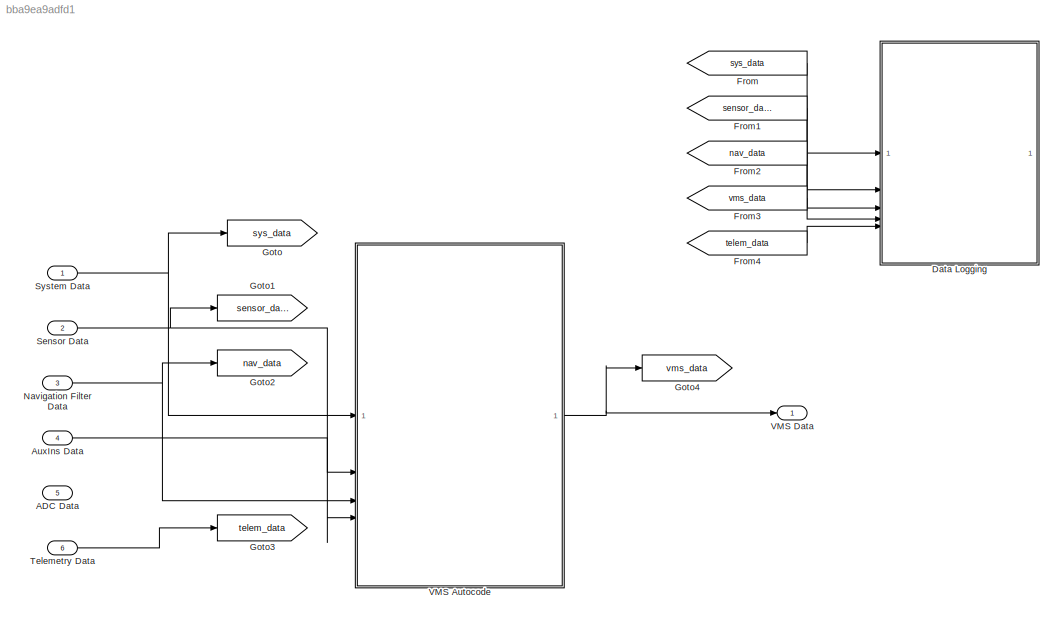
MODEL slx_bba9ea9adfd1
KIND model
CONFIG AbsTol = auto
CONFIG EnableMultiTasking = off
CONFIG FixedStep = 1/100
CONFIG MaxStep = auto
CONFIG MinStep = auto
CONFIG RelTol = 1e-3
CONFIG SampleTimeConstraint = Unconstrained
CONFIG SolverName = FixedStepAuto
CONFIG StartTime = 0.0
CONFIG StopTime = 10.0
BLOCK [Inport] ADC Data
  BusOutputAsStruct = on
  OutDataTypeStr = Bus: AdcData
  Port = 5
  SampleTime = framePeriod_s
BLOCK [Inport] AuxIns Data
  BusOutputAsStruct = on
  OutDataTypeStr = Bus: AuxInsData
  Port = 4
  SampleTime = framePeriod_s
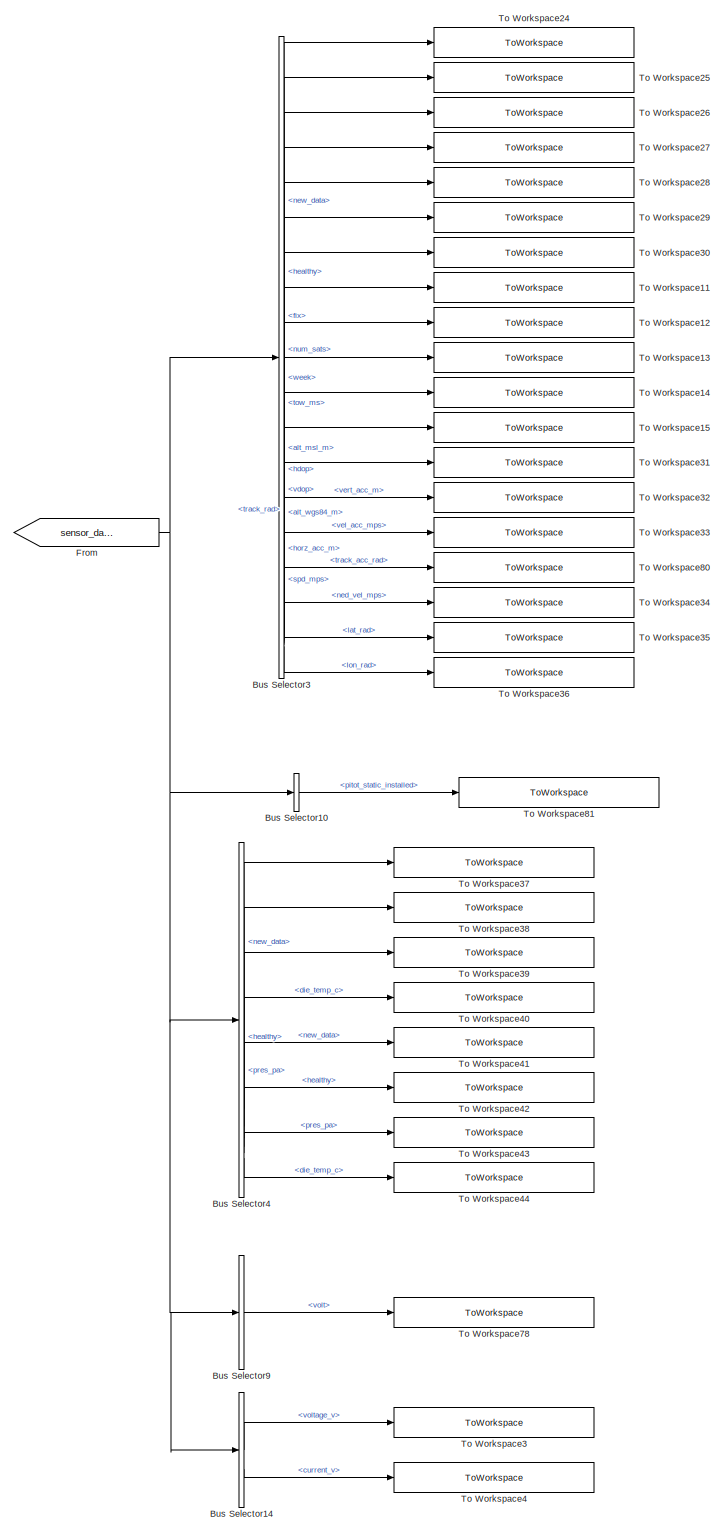
[diagram: Data Logging - part 1/5, center side, full height]
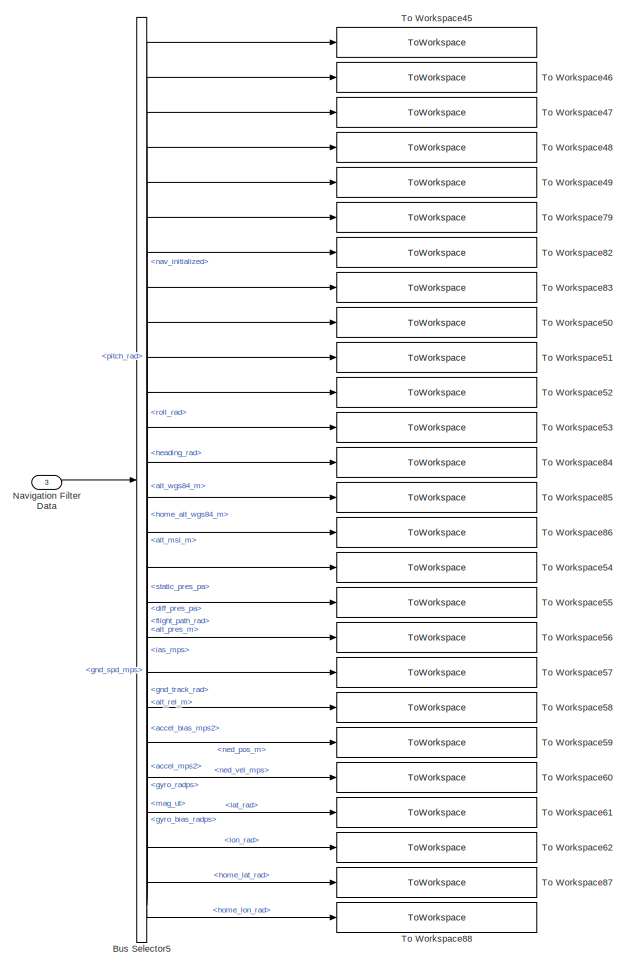
[diagram: Data Logging - part 2/5, top center region]
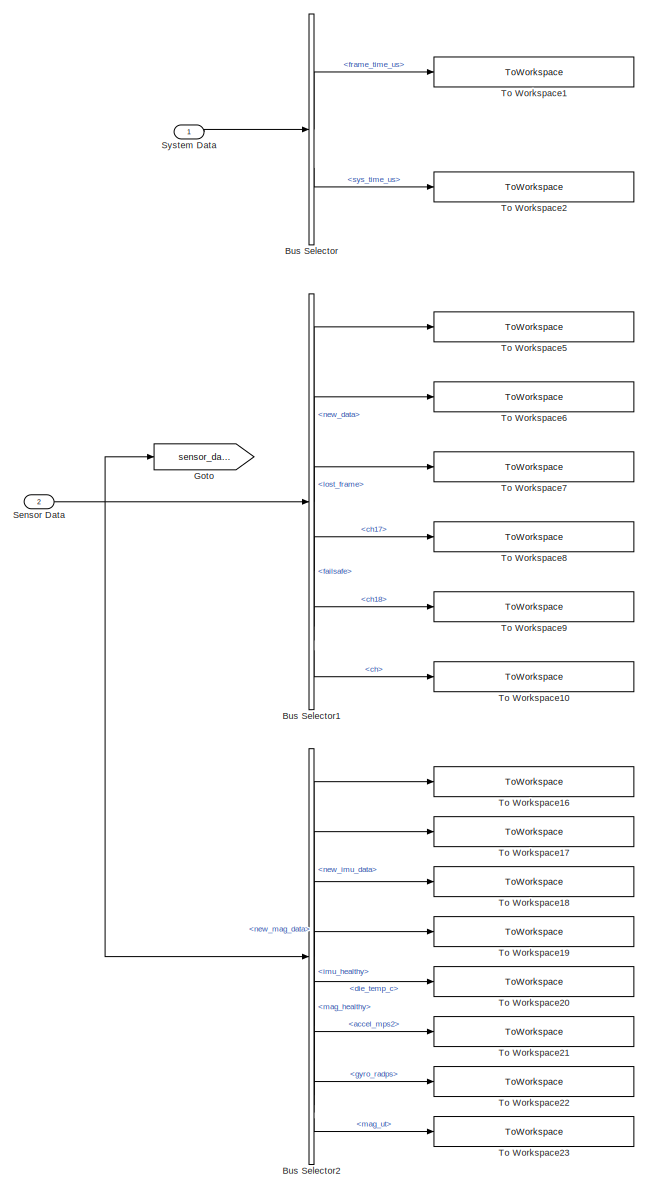
[diagram: Data Logging - part 3/5, middle left region]
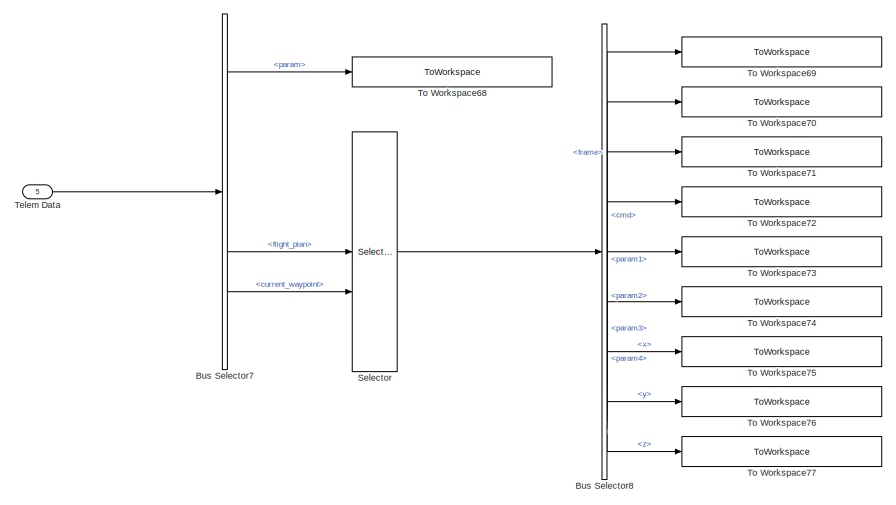
[diagram: Data Logging - part 4/5, middle right region]
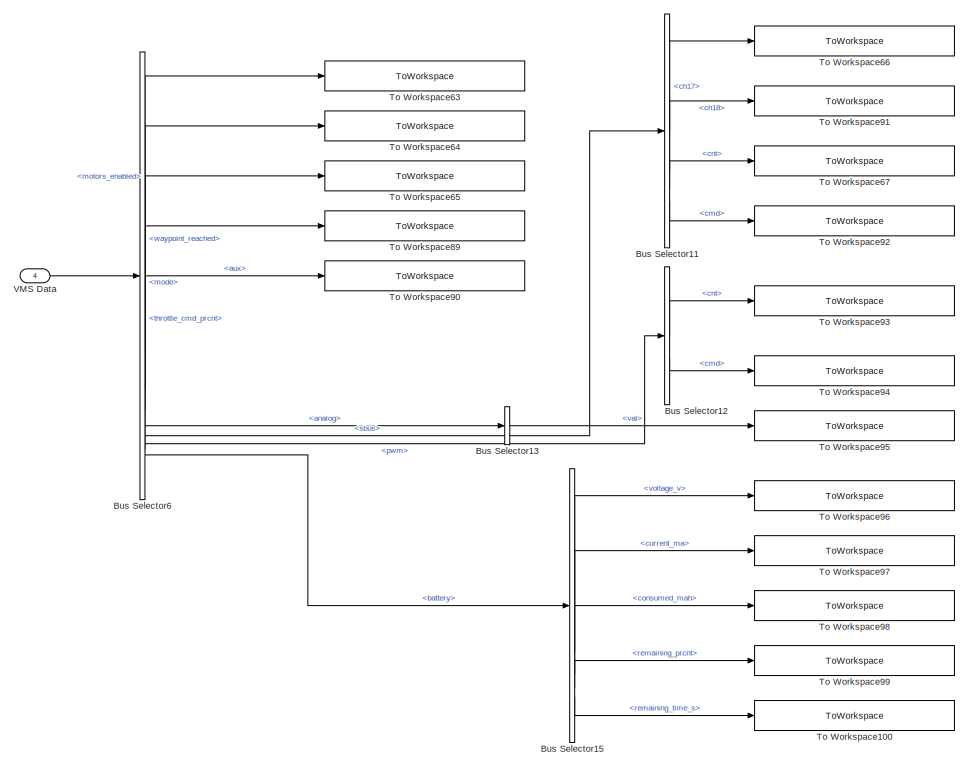
[diagram: Data Logging - part 5/5, bottom center region]
BLOCK [SubSystem] Data Logging
BLOCK [BusSelector] Data Logging/Bus Selector
  OutputSignals = frame_time_us,sys_time_us
BLOCK [BusSelector] Data Logging/Bus Selector1
  OutputSignals = inceptor.new_data,inceptor.lost_frame,inceptor.failsafe,inceptor.ch17,inceptor.ch18,inceptor.ch
BLOCK [BusSelector] Data Logging/Bus Selector10
  OutputSignals = pitot_static_installed
BLOCK [BusSelector] Data Logging/Bus Selector11
  OutputSignals = ch17,ch18,cnt,cmd
BLOCK [BusSelector] Data Logging/Bus Selector12
  OutputSignals = cnt,cmd
BLOCK [BusSelector] Data Logging/Bus Selector13
  OutputSignals = val
BLOCK [BusSelector] Data Logging/Bus Selector14
  OutputSignals = power_module.voltage_v,power_module.current_v
BLOCK [BusSelector] Data Logging/Bus Selector15
  OutputSignals = voltage_v,current_ma,consumed_mah,remaining_prcnt,remaining_time_s
BLOCK [BusSelector] Data Logging/Bus Selector2
  OutputSignals = imu.new_imu_data,imu.new_mag_data,imu.imu_healthy,imu.mag_healthy,imu.die_temp_c,imu.accel_mps2,imu.gyro_radps,imu.mag_ut
BLOCK [BusSelector] Data Logging/Bus Selector3
  OutputSignals = gnss.new_data,gnss.healthy,gnss.fix,gnss.num_sats,gnss.week,gnss.tow_ms,gnss.alt_wgs84_m,gnss.alt_msl_m,gnss.hdop,gnss.vdop,gnss.track_rad,gnss.spd_mps,gnss.horz_acc_m,gnss.vert_acc_m,gnss.vel_acc_mps,gnss.track_acc_rad,gnss.ned_vel_mps,gnss.lat_rad,gnss.lon_rad
BLOCK [BusSelector] Data Logging/Bus Selector4
  OutputSignals = static_pres.new_data,static_pres.healthy,static_pres.pres_pa,static_pres.die_temp_c,diff_pres.new_data,diff_pres.healthy,diff_pres.pres_pa,diff_pres.die_temp_c
BLOCK [BusSelector] Data Logging/Bus Selector5
  OutputSignals = nav_initialized,pitch_rad,roll_rad,heading_rad,alt_wgs84_m,home_alt_wgs84_m,alt_msl_m,alt_rel_m,static_pres_pa,diff_pres_pa,alt_pres_m,ias_mps,gnd_spd_mps,gnd_track_rad,flight_path_rad,accel_bias_mps2,gyro_bias_radps,accel_mps2,gyro_radps,mag_ut,ned_pos_m,ned_vel_mps,lat_rad,lon_rad,home_lat_rad,home_lon_rad
BLOCK [BusSelector] Data Logging/Bus Selector6
  OutputSignals = motors_enabled,waypoint_reached,mode,throttle_cmd_prcnt,aux,sbus,pwm,analog,battery
BLOCK [BusSelector] Data Logging/Bus Selector7
  OutputSignals = param,flight_plan,current_waypoint
BLOCK [BusSelector] Data Logging/Bus Selector8
  OutputSignals = frame,cmd,param1,param2,param3,param4,x,y,z
BLOCK [BusSelector] Data Logging/Bus Selector9
  OutputSignals = adc.volt
BLOCK [From] Data Logging/From
  GotoTag = sensor_data
BLOCK [Goto] Data Logging/Goto
  GotoTag = sensor_data
BLOCK [Inport] Data Logging/Navigation Filter Data
  Port = 3
BLOCK [Selector] Data Logging/Selector
  IndexMode = Zero-based
  IndexOptions = Index vector (port)
  Indices = [1 3]
  InputPortWidth = 500
  OutputSizes = 1
BLOCK [Inport] Data Logging/Sensor Data
  Port = 2
BLOCK [Inport] Data Logging/System Data
BLOCK [Inport] Data Logging/Telem Data
  Port = 5
BLOCK [ToWorkspace] Data Logging/To Workspace1
  FixptAsFi = on
  MaxDataPoints = inf
  SampleTime = -1
  VariableName = sys_frame_time_us
BLOCK [ToWorkspace] Data Logging/To Workspace10
  FixptAsFi = on
  MaxDataPoints = inf
  SampleTime = -1
  VariableName = incept_ch
BLOCK [ToWorkspace] Data Logging/To Workspace100
  FixptAsFi = on
  MaxDataPoints = inf
  SampleTime = -1
  VariableName = vms_batt_remaining_time_s
BLOCK [ToWorkspace] Data Logging/To Workspace11
  FixptAsFi = on
  MaxDataPoints = inf
  SampleTime = -1
  VariableName = gnss_alt_msl_m
BLOCK [ToWorkspace] Data Logging/To Workspace12
  FixptAsFi = on
  MaxDataPoints = inf
  SampleTime = -1
  VariableName = gnss_hdop
BLOCK [ToWorkspace] Data Logging/To Workspace13
  FixptAsFi = on
  MaxDataPoints = inf
  SampleTime = -1
  VariableName = gnss_vdop
BLOCK [ToWorkspace] Data Logging/To Workspace14
  FixptAsFi = on
  MaxDataPoints = inf
  SampleTime = -1
  VariableName = gnss_track_rad
BLOCK [ToWorkspace] Data Logging/To Workspace15
  FixptAsFi = on
  MaxDataPoints = inf
  SampleTime = -1
  VariableName = gnss_spd_mps
BLOCK [ToWorkspace] Data Logging/To Workspace16
  FixptAsFi = on
  MaxDataPoints = inf
  SampleTime = -1
  VariableName = imu_new_data
BLOCK [ToWorkspace] Data Logging/To Workspace17
  FixptAsFi = on
  MaxDataPoints = inf
  SampleTime = -1
  VariableName = imu_new_mag_data
BLOCK [ToWorkspace] Data Logging/To Workspace18
  FixptAsFi = on
  MaxDataPoints = inf
  SampleTime = -1
  VariableName = imu_healthy
BLOCK [ToWorkspace] Data Logging/To Workspace19
  FixptAsFi = on
  MaxDataPoints = inf
  SampleTime = -1
  VariableName = imu_mag_healthy
BLOCK [ToWorkspace] Data Logging/To Workspace2
  FixptAsFi = on
  MaxDataPoints = inf
  SampleTime = -1
  VariableName = sys_time_us
BLOCK [ToWorkspace] Data Logging/To Workspace20
  FixptAsFi = on
  MaxDataPoints = inf
  SampleTime = -1
  VariableName = imu_die_temp_c
BLOCK [ToWorkspace] Data Logging/To Workspace21
  FixptAsFi = on
  MaxDataPoints = inf
  SampleTime = -1
  VariableName = imu_accel_mps2
BLOCK [ToWorkspace] Data Logging/To Workspace22
  FixptAsFi = on
  MaxDataPoints = inf
  SampleTime = -1
  VariableName = imu_gyro_radps
BLOCK [ToWorkspace] Data Logging/To Workspace23
  FixptAsFi = on
  MaxDataPoints = inf
  SampleTime = -1
  VariableName = imu_mag_ut
BLOCK [ToWorkspace] Data Logging/To Workspace24
  FixptAsFi = on
  MaxDataPoints = inf
  SampleTime = -1
  VariableName = gnss_new_data
BLOCK [ToWorkspace] Data Logging/To Workspace25
  FixptAsFi = on
  MaxDataPoints = inf
  SampleTime = -1
  VariableName = gnss_healthy
BLOCK [ToWorkspace] Data Logging/To Workspace26
  FixptAsFi = on
  MaxDataPoints = inf
  SampleTime = -1
  VariableName = gnss_fix
BLOCK [ToWorkspace] Data Logging/To Workspace27
  FixptAsFi = on
  MaxDataPoints = inf
  SampleTime = -1
  VariableName = gnss_num_sats
BLOCK [ToWorkspace] Data Logging/To Workspace28
  FixptAsFi = on
  MaxDataPoints = inf
  SampleTime = -1
  VariableName = gnss_week
BLOCK [ToWorkspace] Data Logging/To Workspace29
  FixptAsFi = on
  MaxDataPoints = inf
  SampleTime = -1
  VariableName = gnss_tow_ms
BLOCK [ToWorkspace] Data Logging/To Workspace3
  FixptAsFi = on
  MaxDataPoints = inf
  SampleTime = -1
  VariableName = pwr_mod_volt_v
BLOCK [ToWorkspace] Data Logging/To Workspace30
  FixptAsFi = on
  MaxDataPoints = inf
  SampleTime = -1
  VariableName = gnss_alt_wgs84_m
BLOCK [ToWorkspace] Data Logging/To Workspace31
  FixptAsFi = on
  MaxDataPoints = inf
  SampleTime = -1
  VariableName = gnss_horz_acc_m
BLOCK [ToWorkspace] Data Logging/To Workspace32
  FixptAsFi = on
  MaxDataPoints = inf
  SampleTime = -1
  VariableName = gnss_vert_acc_m
BLOCK [ToWorkspace] Data Logging/To Workspace33
  FixptAsFi = on
  MaxDataPoints = inf
  SampleTime = -1
  VariableName = gnss_vel_acc_mps
BLOCK [ToWorkspace] Data Logging/To Workspace34
  FixptAsFi = on
  MaxDataPoints = inf
  SampleTime = -1
  VariableName = gnss_ned_vel_mps
BLOCK [ToWorkspace] Data Logging/To Workspace35
  FixptAsFi = on
  MaxDataPoints = inf
  SampleTime = -1
  VariableName = gnss_lat_rad
BLOCK [ToWorkspace] Data Logging/To Workspace36
  FixptAsFi = on
  MaxDataPoints = inf
  SampleTime = -1
  VariableName = gnss_lon_rad
BLOCK [ToWorkspace] Data Logging/To Workspace37
  FixptAsFi = on
  MaxDataPoints = inf
  SampleTime = -1
  VariableName = pres_static_new_data
BLOCK [ToWorkspace] Data Logging/To Workspace38
  FixptAsFi = on
  MaxDataPoints = inf
  SampleTime = -1
  VariableName = pres_static_healthy
BLOCK [ToWorkspace] Data Logging/To Workspace39
  FixptAsFi = on
  MaxDataPoints = inf
  SampleTime = -1
  VariableName = pres_static_pres_pa
BLOCK [ToWorkspace] Data Logging/To Workspace4
  FixptAsFi = on
  MaxDataPoints = inf
  SampleTime = -1
  VariableName = pwr_mod_curr_v
BLOCK [ToWorkspace] Data Logging/To Workspace40
  FixptAsFi = on
  MaxDataPoints = inf
  SampleTime = -1
  VariableName = pres_static_die_temp_c
BLOCK [ToWorkspace] Data Logging/To Workspace41
  FixptAsFi = on
  MaxDataPoints = inf
  SampleTime = -1
  VariableName = pres_diff_new_data
BLOCK [ToWorkspace] Data Logging/To Workspace42
  FixptAsFi = on
  MaxDataPoints = inf
  SampleTime = -1
  VariableName = pres_diff_healthy
BLOCK [ToWorkspace] Data Logging/To Workspace43
  FixptAsFi = on
  MaxDataPoints = inf
  SampleTime = -1
  VariableName = pres_diff_pres_pa
BLOCK [ToWorkspace] Data Logging/To Workspace44
  FixptAsFi = on
  MaxDataPoints = inf
  SampleTime = -1
  VariableName = pres_diff_die_temp_c
BLOCK [ToWorkspace] Data Logging/To Workspace45
  FixptAsFi = on
  MaxDataPoints = inf
  SampleTime = -1
  VariableName = nav_initialized
BLOCK [ToWorkspace] Data Logging/To Workspace46
  FixptAsFi = on
  MaxDataPoints = inf
  SampleTime = -1
  VariableName = nav_pitch_rad
BLOCK [ToWorkspace] Data Logging/To Workspace47
  FixptAsFi = on
  MaxDataPoints = inf
  SampleTime = -1
  VariableName = nav_roll_rad
BLOCK [ToWorkspace] Data Logging/To Workspace48
  FixptAsFi = on
  MaxDataPoints = inf
  SampleTime = -1
  VariableName = nav_heading_rad
BLOCK [ToWorkspace] Data Logging/To Workspace49
  FixptAsFi = on
  MaxDataPoints = inf
  SampleTime = -1
  VariableName = nav_alt_wgs84_m
BLOCK [ToWorkspace] Data Logging/To Workspace5
  FixptAsFi = on
  MaxDataPoints = inf
  SampleTime = -1
  VariableName = incept_new_data
BLOCK [ToWorkspace] Data Logging/To Workspace50
  FixptAsFi = on
  MaxDataPoints = inf
  SampleTime = -1
  VariableName = nav_static_pres_pa
BLOCK [ToWorkspace] Data Logging/To Workspace51
  FixptAsFi = on
  MaxDataPoints = inf
  SampleTime = -1
  VariableName = nav_diff_pres_pa
BLOCK [ToWorkspace] Data Logging/To Workspace52
  FixptAsFi = on
  MaxDataPoints = inf
  SampleTime = -1
  VariableName = nav_alt_pres_m
BLOCK [ToWorkspace] Data Logging/To Workspace53
  FixptAsFi = on
  MaxDataPoints = inf
  SampleTime = -1
  VariableName = nav_ias_mps
BLOCK [ToWorkspace] Data Logging/To Workspace54
  FixptAsFi = on
  MaxDataPoints = inf
  SampleTime = -1
  VariableName = nav_accel_bias_mps2
BLOCK [ToWorkspace] Data Logging/To Workspace55
  FixptAsFi = on
  MaxDataPoints = inf
  SampleTime = -1
  VariableName = nav_gyro_bias_radps
BLOCK [ToWorkspace] Data Logging/To Workspace56
  FixptAsFi = on
  MaxDataPoints = inf
  SampleTime = -1
  VariableName = nav_accel_mps2
BLOCK [ToWorkspace] Data Logging/To Workspace57
  FixptAsFi = on
  MaxDataPoints = inf
  SampleTime = -1
  VariableName = nav_gyro_radps
BLOCK [ToWorkspace] Data Logging/To Workspace58
  FixptAsFi = on
  MaxDataPoints = inf
  SampleTime = -1
  VariableName = nav_mag_ut
BLOCK [ToWorkspace] Data Logging/To Workspace59
  FixptAsFi = on
  MaxDataPoints = inf
  SampleTime = -1
  VariableName = nav_ned_pos_m
BLOCK [ToWorkspace] Data Logging/To Workspace6
  FixptAsFi = on
  MaxDataPoints = inf
  SampleTime = -1
  VariableName = incept_lost_frame
BLOCK [ToWorkspace] Data Logging/To Workspace60
  FixptAsFi = on
  MaxDataPoints = inf
  SampleTime = -1
  VariableName = nav_ned_vel_mps
BLOCK [ToWorkspace] Data Logging/To Workspace61
  FixptAsFi = on
  MaxDataPoints = inf
  SampleTime = -1
  VariableName = nav_lat_rad
BLOCK [ToWorkspace] Data Logging/To Workspace62
  FixptAsFi = on
  MaxDataPoints = inf
  SampleTime = -1
  VariableName = nav_lon_rad
BLOCK [ToWorkspace] Data Logging/To Workspace63
  FixptAsFi = on
  MaxDataPoints = inf
  SampleTime = -1
  VariableName = vms_motors_enabled
BLOCK [ToWorkspace] Data Logging/To Workspace64
  FixptAsFi = on
  MaxDataPoints = inf
  SampleTime = -1
  VariableName = vms_waypoint_reached
BLOCK [ToWorkspace] Data Logging/To Workspace65
  FixptAsFi = on
  MaxDataPoints = inf
  SampleTime = -1
  VariableName = vms_mode
BLOCK [ToWorkspace] Data Logging/To Workspace66
  FixptAsFi = on
  MaxDataPoints = inf
  SampleTime = -1
  VariableName = vms_sbus_ch17
BLOCK [ToWorkspace] Data Logging/To Workspace67
  FixptAsFi = on
  MaxDataPoints = inf
  SampleTime = -1
  VariableName = vms_sbus_cnt
BLOCK [ToWorkspace] Data Logging/To Workspace68
  FixptAsFi = on
  MaxDataPoints = inf
  SampleTime = -1
  VariableName = telem_param
BLOCK [ToWorkspace] Data Logging/To Workspace69
  FixptAsFi = on
  MaxDataPoints = inf
  SampleTime = -1
  VariableName = waypoint_frame
BLOCK [ToWorkspace] Data Logging/To Workspace7
  FixptAsFi = on
  MaxDataPoints = inf
  SampleTime = -1
  VariableName = incept_failsafe
BLOCK [ToWorkspace] Data Logging/To Workspace70
  FixptAsFi = on
  MaxDataPoints = inf
  SampleTime = -1
  VariableName = waypoint_cmd
BLOCK [ToWorkspace] Data Logging/To Workspace71
  FixptAsFi = on
  MaxDataPoints = inf
  SampleTime = -1
  VariableName = waypoint_param1
BLOCK [ToWorkspace] Data Logging/To Workspace72
  FixptAsFi = on
  MaxDataPoints = inf
  SampleTime = -1
  VariableName = waypoint_param2
BLOCK [ToWorkspace] Data Logging/To Workspace73
  FixptAsFi = on
  MaxDataPoints = inf
  SampleTime = -1
  VariableName = waypoint_param3
BLOCK [ToWorkspace] Data Logging/To Workspace74
  FixptAsFi = on
  MaxDataPoints = inf
  SampleTime = -1
  VariableName = waypoint_param4
BLOCK [ToWorkspace] Data Logging/To Workspace75
  FixptAsFi = on
  MaxDataPoints = inf
  SampleTime = -1
  VariableName = waypoint_x
BLOCK [ToWorkspace] Data Logging/To Workspace76
  FixptAsFi = on
  MaxDataPoints = inf
  SampleTime = -1
  VariableName = waypoint_y
BLOCK [ToWorkspace] Data Logging/To Workspace77
  FixptAsFi = on
  MaxDataPoints = inf
  SampleTime = -1
  VariableName = waypoint_z
BLOCK [ToWorkspace] Data Logging/To Workspace78
  FixptAsFi = on
  MaxDataPoints = inf
  SampleTime = -1
  VariableName = adc_volt
BLOCK [ToWorkspace] Data Logging/To Workspace79
  FixptAsFi = on
  MaxDataPoints = inf
  SampleTime = -1
  VariableName = nav_home_alt_wgs84_m
BLOCK [ToWorkspace] Data Logging/To Workspace8
  FixptAsFi = on
  MaxDataPoints = inf
  SampleTime = -1
  VariableName = incept_ch17
BLOCK [ToWorkspace] Data Logging/To Workspace80
  FixptAsFi = on
  MaxDataPoints = inf
  SampleTime = -1
  VariableName = gnss_track_acc_rad
BLOCK [ToWorkspace] Data Logging/To Workspace81
  FixptAsFi = on
  MaxDataPoints = inf
  SampleTime = -1
  VariableName = pitot_static_installed
BLOCK [ToWorkspace] Data Logging/To Workspace82
  FixptAsFi = on
  MaxDataPoints = inf
  SampleTime = -1
  VariableName = nav_alt_msl_m
BLOCK [ToWorkspace] Data Logging/To Workspace83
  FixptAsFi = on
  MaxDataPoints = inf
  SampleTime = -1
  VariableName = nav_alt_rel_m
BLOCK [ToWorkspace] Data Logging/To Workspace84
  FixptAsFi = on
  MaxDataPoints = inf
  SampleTime = -1
  VariableName = nav_gnd_spd_mps
BLOCK [ToWorkspace] Data Logging/To Workspace85
  FixptAsFi = on
  MaxDataPoints = inf
  SampleTime = -1
  VariableName = nav_gnd_track_rad
BLOCK [ToWorkspace] Data Logging/To Workspace86
  FixptAsFi = on
  MaxDataPoints = inf
  SampleTime = -1
  VariableName = nav_flight_path_rad
BLOCK [ToWorkspace] Data Logging/To Workspace87
  FixptAsFi = on
  MaxDataPoints = inf
  SampleTime = -1
  VariableName = nav_home_lat_rad
BLOCK [ToWorkspace] Data Logging/To Workspace88
  FixptAsFi = on
  MaxDataPoints = inf
  SampleTime = -1
  VariableName = nav_home_lon_rad
BLOCK [ToWorkspace] Data Logging/To Workspace89
  FixptAsFi = on
  MaxDataPoints = inf
  SampleTime = -1
  VariableName = vms_throttle_cmd_prcnt
BLOCK [ToWorkspace] Data Logging/To Workspace9
  FixptAsFi = on
  MaxDataPoints = inf
  SampleTime = -1
  VariableName = incept_ch18
BLOCK [ToWorkspace] Data Logging/To Workspace90
  FixptAsFi = on
  MaxDataPoints = inf
  SampleTime = -1
  VariableName = vms_aux
BLOCK [ToWorkspace] Data Logging/To Workspace91
  FixptAsFi = on
  MaxDataPoints = inf
  SampleTime = -1
  VariableName = vms_sbus_ch18
BLOCK [ToWorkspace] Data Logging/To Workspace92
  FixptAsFi = on
  MaxDataPoints = inf
  SampleTime = -1
  VariableName = vms_sbus_cmd
BLOCK [ToWorkspace] Data Logging/To Workspace93
  FixptAsFi = on
  MaxDataPoints = inf
  SampleTime = -1
  VariableName = vms_pwm_cnt
BLOCK [ToWorkspace] Data Logging/To Workspace94
  FixptAsFi = on
  MaxDataPoints = inf
  SampleTime = -1
  VariableName = vms_pwm_cmd
BLOCK [ToWorkspace] Data Logging/To Workspace95
  FixptAsFi = on
  MaxDataPoints = inf
  SampleTime = -1
  VariableName = vms_analog
BLOCK [ToWorkspace] Data Logging/To Workspace96
  FixptAsFi = on
  MaxDataPoints = inf
  SampleTime = -1
  VariableName = vms_batt_volt_v
BLOCK [ToWorkspace] Data Logging/To Workspace97
  FixptAsFi = on
  MaxDataPoints = inf
  SampleTime = -1
  VariableName = vms_batt_curr_ma
BLOCK [ToWorkspace] Data Logging/To Workspace98
  FixptAsFi = on
  MaxDataPoints = inf
  SampleTime = -1
  VariableName = vms_batt_consumed_mah
BLOCK [ToWorkspace] Data Logging/To Workspace99
  FixptAsFi = on
  MaxDataPoints = inf
  SampleTime = -1
  VariableName = vms_batt_remaining_prcnt
BLOCK [Inport] Data Logging/VMS Data
  Port = 4
BLOCK [From] From
  GotoTag = sys_data
BLOCK [From] From1
  GotoTag = sensor_data
BLOCK [From] From2
  GotoTag = nav_data
BLOCK [From] From3
  GotoTag = vms_data
BLOCK [From] From4
  GotoTag = telem_data
BLOCK [Goto] Goto
  GotoTag = sys_data
BLOCK [Goto] Goto1
  GotoTag = sensor_data
BLOCK [Goto] Goto2
  GotoTag = nav_data
BLOCK [Goto] Goto3
  GotoTag = telem_data
BLOCK [Goto] Goto4
  GotoTag = vms_data
BLOCK [Inport] Navigation Filter Data
  BusOutputAsStruct = on
  OutDataTypeStr = Bus: InsData
  Port = 3
  SampleTime = framePeriod_s
BLOCK [Inport] Sensor Data
  BusOutputAsStruct = on
  OutDataTypeStr = Bus: SensorData
  Port = 2
  SampleTime = framePeriod_s
BLOCK [Inport] System Data
  BusOutputAsStruct = on
  OutDataTypeStr = Bus: SysData
  SampleTime = framePeriod_s
BLOCK [Inport] Telemetry Data
  BusOutputAsStruct = on
  OutDataTypeStr = Bus: TelemData
  Port = 6
  SampleTime = framePeriod_s
BLOCK [ModelReference] VMS Autocode
  ModelNameDialog = malt_indi.slx
  ModelReferenceVersion = 1.437
BLOCK [Outport] VMS Data
  BusOutputAsStruct = on
  OutDataTypeStr = Bus: VmsData
  SampleTime = framePeriod_s
LINE AuxIns Data:1 -> VMS Autocode:4
LINE Data Logging/Bus Selector10:1 -> Data Logging/To Workspace81:1
LINE Data Logging/Bus Selector11:1 -> Data Logging/To Workspace66:1
LINE Data Logging/Bus Selector11:2 -> Data Logging/To Workspace91:1
LINE Data Logging/Bus Selector11:3 -> Data Logging/To Workspace67:1
LINE Data Logging/Bus Selector11:4 -> Data Logging/To Workspace92:1
LINE Data Logging/Bus Selector12:1 -> Data Logging/To Workspace93:1
LINE Data Logging/Bus Selector12:2 -> Data Logging/To Workspace94:1
LINE Data Logging/Bus Selector13:1 -> Data Logging/To Workspace95:1
LINE Data Logging/Bus Selector14:1 -> Data Logging/To Workspace3:1
LINE Data Logging/Bus Selector14:2 -> Data Logging/To Workspace4:1
LINE Data Logging/Bus Selector15:1 -> Data Logging/To Workspace96:1
LINE Data Logging/Bus Selector15:2 -> Data Logging/To Workspace97:1
LINE Data Logging/Bus Selector15:3 -> Data Logging/To Workspace98:1
LINE Data Logging/Bus Selector15:4 -> Data Logging/To Workspace99:1
LINE Data Logging/Bus Selector15:5 -> Data Logging/To Workspace100:1
LINE Data Logging/Bus Selector1:1 -> Data Logging/To Workspace5:1
LINE Data Logging/Bus Selector1:2 -> Data Logging/To Workspace6:1
LINE Data Logging/Bus Selector1:3 -> Data Logging/To Workspace7:1
LINE Data Logging/Bus Selector1:4 -> Data Logging/To Workspace8:1
LINE Data Logging/Bus Selector1:5 -> Data Logging/To Workspace9:1
LINE Data Logging/Bus Selector1:6 -> Data Logging/To Workspace10:1
LINE Data Logging/Bus Selector2:1 -> Data Logging/To Workspace16:1
LINE Data Logging/Bus Selector2:2 -> Data Logging/To Workspace17:1
LINE Data Logging/Bus Selector2:3 -> Data Logging/To Workspace18:1
LINE Data Logging/Bus Selector2:4 -> Data Logging/To Workspace19:1
LINE Data Logging/Bus Selector2:5 -> Data Logging/To Workspace20:1
LINE Data Logging/Bus Selector2:6 -> Data Logging/To Workspace21:1
LINE Data Logging/Bus Selector2:7 -> Data Logging/To Workspace22:1
LINE Data Logging/Bus Selector2:8 -> Data Logging/To Workspace23:1
LINE Data Logging/Bus Selector3:1 -> Data Logging/To Workspace24:1
LINE Data Logging/Bus Selector3:10 -> Data Logging/To Workspace13:1
LINE Data Logging/Bus Selector3:11 -> Data Logging/To Workspace14:1
LINE Data Logging/Bus Selector3:12 -> Data Logging/To Workspace15:1
LINE Data Logging/Bus Selector3:13 -> Data Logging/To Workspace31:1
LINE Data Logging/Bus Selector3:14 -> Data Logging/To Workspace32:1
LINE Data Logging/Bus Selector3:15 -> Data Logging/To Workspace33:1
LINE Data Logging/Bus Selector3:16 -> Data Logging/To Workspace80:1
LINE Data Logging/Bus Selector3:17 -> Data Logging/To Workspace34:1
LINE Data Logging/Bus Selector3:18 -> Data Logging/To Workspace35:1
LINE Data Logging/Bus Selector3:19 -> Data Logging/To Workspace36:1
LINE Data Logging/Bus Selector3:2 -> Data Logging/To Workspace25:1
LINE Data Logging/Bus Selector3:3 -> Data Logging/To Workspace26:1
LINE Data Logging/Bus Selector3:4 -> Data Logging/To Workspace27:1
LINE Data Logging/Bus Selector3:5 -> Data Logging/To Workspace28:1
LINE Data Logging/Bus Selector3:6 -> Data Logging/To Workspace29:1
LINE Data Logging/Bus Selector3:7 -> Data Logging/To Workspace30:1
LINE Data Logging/Bus Selector3:8 -> Data Logging/To Workspace11:1
LINE Data Logging/Bus Selector3:9 -> Data Logging/To Workspace12:1
LINE Data Logging/Bus Selector4:1 -> Data Logging/To Workspace37:1
LINE Data Logging/Bus Selector4:2 -> Data Logging/To Workspace38:1
LINE Data Logging/Bus Selector4:3 -> Data Logging/To Workspace39:1
LINE Data Logging/Bus Selector4:4 -> Data Logging/To Workspace40:1
LINE Data Logging/Bus Selector4:5 -> Data Logging/To Workspace41:1
LINE Data Logging/Bus Selector4:6 -> Data Logging/To Workspace42:1
LINE Data Logging/Bus Selector4:7 -> Data Logging/To Workspace43:1
LINE Data Logging/Bus Selector4:8 -> Data Logging/To Workspace44:1
LINE Data Logging/Bus Selector5:1 -> Data Logging/To Workspace45:1
LINE Data Logging/Bus Selector5:10 -> Data Logging/To Workspace51:1
LINE Data Logging/Bus Selector5:11 -> Data Logging/To Workspace52:1
LINE Data Logging/Bus Selector5:12 -> Data Logging/To Workspace53:1
LINE Data Logging/Bus Selector5:13 -> Data Logging/To Workspace84:1
LINE Data Logging/Bus Selector5:14 -> Data Logging/To Workspace85:1
LINE Data Logging/Bus Selector5:15 -> Data Logging/To Workspace86:1
LINE Data Logging/Bus Selector5:16 -> Data Logging/To Workspace54:1
LINE Data Logging/Bus Selector5:17 -> Data Logging/To Workspace55:1
LINE Data Logging/Bus Selector5:18 -> Data Logging/To Workspace56:1
LINE Data Logging/Bus Selector5:19 -> Data Logging/To Workspace57:1
LINE Data Logging/Bus Selector5:2 -> Data Logging/To Workspace46:1
LINE Data Logging/Bus Selector5:20 -> Data Logging/To Workspace58:1
LINE Data Logging/Bus Selector5:21 -> Data Logging/To Workspace59:1
LINE Data Logging/Bus Selector5:22 -> Data Logging/To Workspace60:1
LINE Data Logging/Bus Selector5:23 -> Data Logging/To Workspace61:1
LINE Data Logging/Bus Selector5:24 -> Data Logging/To Workspace62:1
LINE Data Logging/Bus Selector5:25 -> Data Logging/To Workspace87:1
LINE Data Logging/Bus Selector5:26 -> Data Logging/To Workspace88:1
LINE Data Logging/Bus Selector5:3 -> Data Logging/To Workspace47:1
LINE Data Logging/Bus Selector5:4 -> Data Logging/To Workspace48:1
LINE Data Logging/Bus Selector5:5 -> Data Logging/To Workspace49:1
LINE Data Logging/Bus Selector5:6 -> Data Logging/To Workspace79:1
LINE Data Logging/Bus Selector5:7 -> Data Logging/To Workspace82:1
LINE Data Logging/Bus Selector5:8 -> Data Logging/To Workspace83:1
LINE Data Logging/Bus Selector5:9 -> Data Logging/To Workspace50:1
LINE Data Logging/Bus Selector6:1 -> Data Logging/To Workspace63:1
LINE Data Logging/Bus Selector6:2 -> Data Logging/To Workspace64:1
LINE Data Logging/Bus Selector6:3 -> Data Logging/To Workspace65:1
LINE Data Logging/Bus Selector6:4 -> Data Logging/To Workspace89:1
LINE Data Logging/Bus Selector6:5 -> Data Logging/To Workspace90:1
LINE Data Logging/Bus Selector6:6 -> Data Logging/Bus Selector11:1
LINE Data Logging/Bus Selector6:7 -> Data Logging/Bus Selector12:1
LINE Data Logging/Bus Selector6:8 -> Data Logging/Bus Selector13:1
LINE Data Logging/Bus Selector6:9 -> Data Logging/Bus Selector15:1
LINE Data Logging/Bus Selector7:1 -> Data Logging/To Workspace68:1
LINE Data Logging/Bus Selector7:2 -> Data Logging/Selector:1
LINE Data Logging/Bus Selector7:3 -> Data Logging/Selector:2
LINE Data Logging/Bus Selector8:1 -> Data Logging/To Workspace69:1
LINE Data Logging/Bus Selector8:2 -> Data Logging/To Workspace70:1
LINE Data Logging/Bus Selector8:3 -> Data Logging/To Workspace71:1
LINE Data Logging/Bus Selector8:4 -> Data Logging/To Workspace72:1
LINE Data Logging/Bus Selector8:5 -> Data Logging/To Workspace73:1
LINE Data Logging/Bus Selector8:6 -> Data Logging/To Workspace74:1
LINE Data Logging/Bus Selector8:7 -> Data Logging/To Workspace75:1
LINE Data Logging/Bus Selector8:8 -> Data Logging/To Workspace76:1
LINE Data Logging/Bus Selector8:9 -> Data Logging/To Workspace77:1
LINE Data Logging/Bus Selector9:1 -> Data Logging/To Workspace78:1
LINE Data Logging/Bus Selector:1 -> Data Logging/To Workspace1:1
LINE Data Logging/Bus Selector:2 -> Data Logging/To Workspace2:1
NET Data Logging/From:1 -> Data Logging/Bus Selector10:1, Data Logging/Bus Selector14:1, Data Logging/Bus Selector3:1, Data Logging/Bus Selector4:1, Data Logging/Bus Selector9:1
LINE Data Logging/Navigation Filter Data:1 -> Data Logging/Bus Selector5:1
LINE Data Logging/Selector:1 -> Data Logging/Bus Selector8:1
NET Data Logging/Sensor Data:1 -> Data Logging/Bus Selector1:1, Data Logging/Bus Selector2:1, Data Logging/Goto:1
LINE Data Logging/System Data:1 -> Data Logging/Bus Selector:1
LINE Data Logging/Telem Data:1 -> Data Logging/Bus Selector7:1
LINE Data Logging/VMS Data:1 -> Data Logging/Bus Selector6:1
LINE From1:1 -> Data Logging:2
LINE From2:1 -> Data Logging:3
LINE From3:1 -> Data Logging:4
LINE From4:1 -> Data Logging:5
LINE From:1 -> Data Logging:1
NET Navigation Filter Data:1 -> Goto2:1, VMS Autocode:3
NET Sensor Data:1 -> Goto1:1, VMS Autocode:2
NET System Data:1 -> Goto:1, VMS Autocode:1
LINE Telemetry Data:1 -> Goto3:1
NET VMS Autocode:1 -> Goto4:1, VMS Data:1
note: NET lines group one-source signal fan-out (src -> all destinations, sorted); 1:1 wires keep LINE
